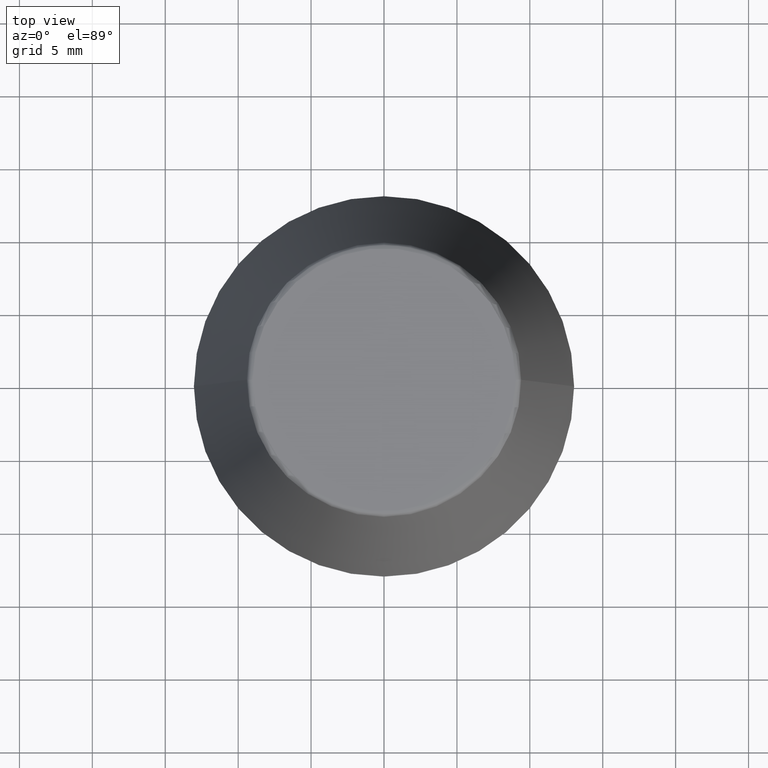
[diagram: clean part render]
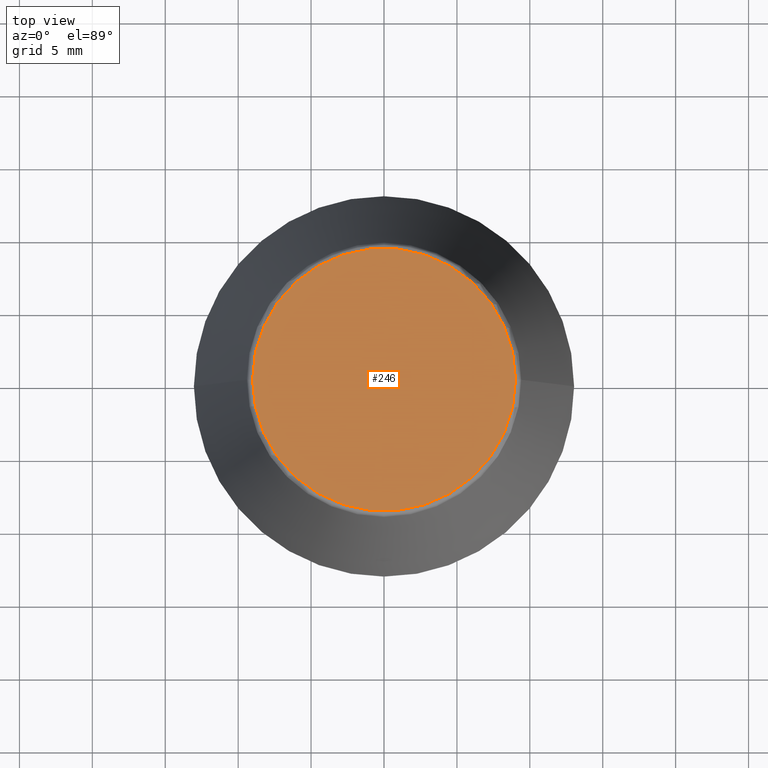
[diagram: same view with one face highlighted and labeled with its STEP entity id]
A machine part, top view. The second image highlights one B-rep face of the part: STEP entity #246.
In plain terms, the highlighted planar face has unit normal (0, 0, -1).
Its self-contained STEP definition (entity closure, byte-faithful):
#3 = CARTESIAN_POINT ( 'NONE',  ( 0.0000000000000000000, 9.012603057622234500, 34.00000000000000000 ) ) ;
#7 = PLANE ( 'NONE',  #203 ) ;
#12 = ORIENTED_EDGE ( 'NONE', *, *, #238, .T. ) ;
#17 = CIRCLE ( 'NONE', #80, 9.012603057622234500 ) ;
#59 = DIRECTION ( 'NONE',  ( -0.0000000000000000000, -0.0000000000000000000, 1.000000000000000000 ) ) ;
#63 = DIRECTION ( 'NONE',  ( 1.000000000000000000, 0.0000000000000000000, 0.0000000000000000000 ) ) ;
#75 = CIRCLE ( 'NONE', #245, 9.012603057622234500 ) ;
#76 = VERTEX_POINT ( 'NONE', #371 ) ;
#80 = AXIS2_PLACEMENT_3D ( 'NONE', #328, #220, #101 ) ;
#88 = CARTESIAN_POINT ( 'NONE',  ( 0.0000000000000000000, 0.0000000000000000000, 34.00000000000000000 ) ) ;
#101 = DIRECTION ( 'NONE',  ( 1.000000000000000000, 0.0000000000000000000, 0.0000000000000000000 ) ) ;
#124 = CARTESIAN_POINT ( 'NONE',  ( -9.012603057622234500, 1.127980121063915600E-015, 34.00000000000000000 ) ) ;
#131 = EDGE_LOOP ( 'NONE', ( #173, #12 ) ) ;
#173 = ORIENTED_EDGE ( 'NONE', *, *, #319, .T. ) ;
#203 = AXIS2_PLACEMENT_3D ( 'NONE', #3, #247, #274 ) ;
#220 = DIRECTION ( 'NONE',  ( -0.0000000000000000000, -0.0000000000000000000, 1.000000000000000000 ) ) ;
#238 = EDGE_CURVE ( 'NONE', #325, #76, #17, .T. ) ;
#245 = AXIS2_PLACEMENT_3D ( 'NONE', #88, #59, #63 ) ;
#246 = ADVANCED_FACE ( 'NONE', ( #260 ), #7, .F. ) ;
#247 = DIRECTION ( 'NONE',  ( 0.0000000000000000000, 0.0000000000000000000, -1.000000000000000000 ) ) ;
#260 = FACE_OUTER_BOUND ( 'NONE', #131, .T. ) ;
#274 = DIRECTION ( 'NONE',  ( -1.000000000000000000, 0.0000000000000000000, -0.0000000000000000000 ) ) ;
#319 = EDGE_CURVE ( 'NONE', #76, #325, #75, .T. ) ;
#325 = VERTEX_POINT ( 'NONE', #124 ) ;
#328 = CARTESIAN_POINT ( 'NONE',  ( 0.0000000000000000000, 0.0000000000000000000, 34.00000000000000000 ) ) ;
#371 = CARTESIAN_POINT ( 'NONE',  ( 9.012603057622234500, 0.0000000000000000000, 34.00000000000000000 ) ) ;